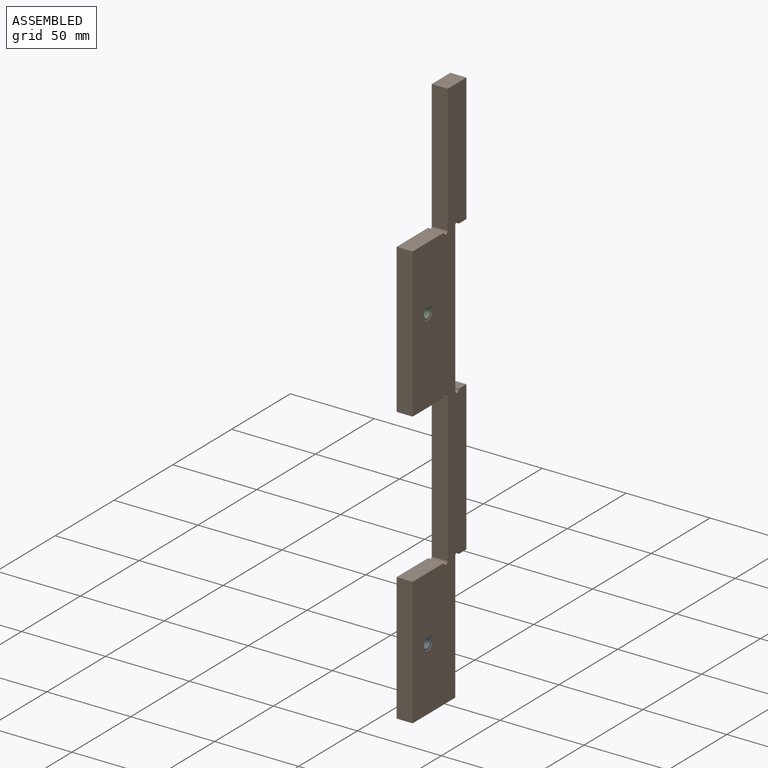
[diagram: assembled view]
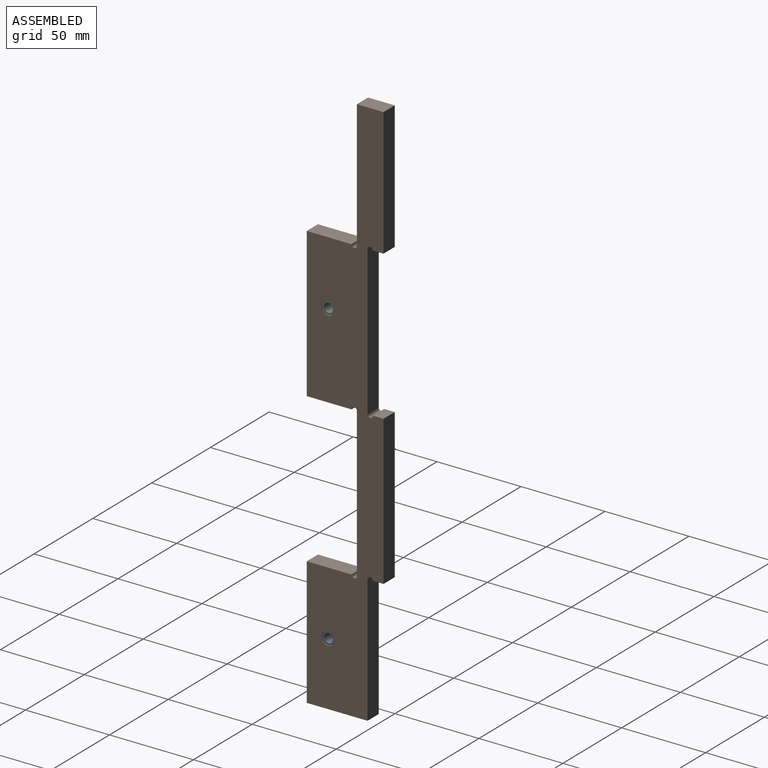
[diagram: assembled view, second angle]
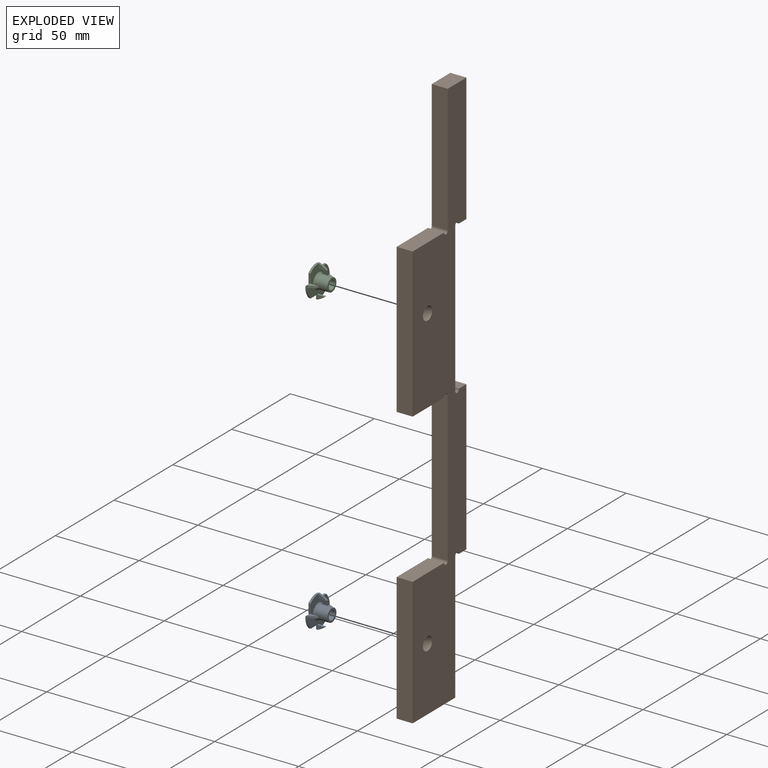
[diagram: exploded view]
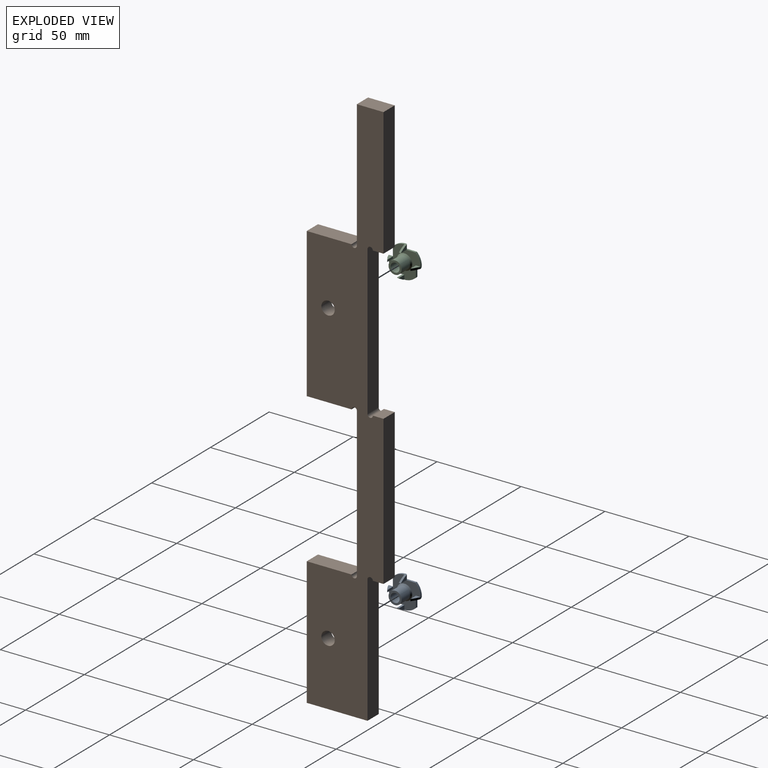
[diagram: exploded view, second angle]
ASSEMBLY  parts=3 mates=2
PART A: 39 faces, bbox 19.1x19.1x9.1 mm
  f0: cylinder r=9.53mm len=6.86mm, axis (0,0,-1), area 9.1mm2, adj f7,f10,f26,f28
  f1: cylinder r=16.73mm len=4.76mm, axis (0,-1,0), area 6.5mm2, adj f2,f3,f5,f6
  f2: plane 1.19x1.19mm, normal (1,0,0), area 1.1mm2, adj f1,f4,f27
  f3: plane 4.76x2.67mm, normal (0,-1,0), area 7.2mm2, adj f1,f4,f6
  f4: cylinder r=1.19mm len=2.67mm, axis (-1,0,0), area 5mm2, adj f2,f3,f7,f26
  f5: plane 4.76x2.67mm, normal (0,1,0), area 7.2mm2, adj f1,f6,f28
  f6: plane 4.76x1.19mm, normal (-1,0,0), area 5.7mm2, adj f1,f3,f5,f28
  f7: plane 6.61x1.19mm, normal (1,0,0), area 6.8mm2, adj f0,f4,f26,f28
  f8: cylinder r=9.53mm len=6.86mm, axis (0,0,-1), area 9.1mm2, adj f15,f18,f26,f28
  f9: cylinder r=16.73mm len=4.76mm, axis (-1,0,0), area 6.5mm2, adj f10,f11,f13,f14
  f10: plane 1.19x1.19mm, normal (0,-1,0), area 1.1mm2, adj f0,f9,f12
  f11: plane 4.76x2.67mm, normal (-1,0,0), area 7.2mm2, adj f9,f12,f14
  f12: cylinder r=1.19mm len=2.67mm, axis (0,1,0), area 5mm2, adj f10,f11,f15,f26
  f13: plane 4.76x2.67mm, normal (1,0,0), area 7.2mm2, adj f9,f14,f28
  f14: plane 4.76x1.19mm, normal (0,1,0), area 5.7mm2, adj f9,f11,f13,f28
  f15: plane 6.61x1.19mm, normal (0,-1,0), area 6.8mm2, adj f8,f12,f26,f28
  f16: cylinder r=9.53mm len=6.86mm, axis (0,0,-1), area 9.1mm2, adj f23,f26,f28,f34
  f17: cylinder r=16.73mm len=4.76mm, axis (0,1,0), area 6.5mm2, adj f18,f19,f21,f22
  f18: plane 1.19x1.19mm, normal (-1,0,0), area 1.1mm2, adj f8,f17,f20
  f19: plane 4.76x2.67mm, normal (0,1,0), area 7.2mm2, adj f17,f20,f22
  f20: cylinder r=1.19mm len=2.67mm, axis (1,0,0), area 5mm2, adj f18,f19,f23,f26
  f21: plane 4.76x2.67mm, normal (0,-1,0), area 7.2mm2, adj f17,f22,f28
  f22: plane 4.76x1.19mm, normal (1,0,0), area 5.7mm2, adj f17,f19,f21,f28
  f23: plane 6.61x1.19mm, normal (-1,0,0), area 6.8mm2, adj f16,f20,f26,f28
  f24: plane 4.76x2.67mm, normal (-1,0,0), area 7.2mm2, adj f28,f37,f38
  f25: cone r=2.68mm half-angle=45deg, axis (0,0,-1), area 44.3mm2, adj f26,f32
  f26: plane 19.05x19.05mm, normal (0,0,-1), area 182.6mm2, adj f0,f4,f7,f8,f12,f15,f16,f20
  f27: cylinder r=9.53mm len=6.86mm, axis (0,0,-1), area 9.1mm2, adj f2,f26,f28,f33
  f28: plane 19.05x19.05mm, normal (0,0,1), area 169mm2, adj f0,f5,f6,f7,f8,f13,f14,f15
  f29: cone r=4.64mm half-angle=45deg, axis (0,0,-1), area 28.8mm2, adj f28,f30
  f30: cylinder r=3.87mm len=7.75mm, axis (0,0,-1), area 174.9mm2, adj f29,f31
  f31: plane 7.75x7.75mm, normal (0,0,1), area 24.6mm2, adj f30,f32
  f32: cylinder r=2.68mm len=7.68mm, axis (0,0,-1), area 129.4mm2, adj f25,f31
  f33: plane 6.61x1.19mm, normal (0,1,0), area 6.8mm2, adj f26,f27,f28,f36
  f34: plane 1.19x1.19mm, normal (0,1,0), area 1.1mm2, adj f16,f36,f38
  f35: plane 4.76x2.67mm, normal (1,0,0), area 7.2mm2, adj f36,f37,f38
  f36: cylinder r=1.19mm len=2.67mm, axis (0,-1,0), area 5mm2, adj f26,f33,f34,f35
  f37: plane 4.76x1.19mm, normal (0,-1,0), area 5.7mm2, adj f24,f28,f35,f38
  f38: cylinder r=16.73mm len=4.76mm, axis (1,0,0), area 6.5mm2, adj f24,f34,f35,f37
PART B: 30 faces, bbox 9.5x45.7x330.2 mm
  f0: plane 9.53x6.35mm, normal (0,0,-1), area 60.5mm2, adj f4,f8,f17,f29
  f1: plane 9.53x6.35mm, normal (0,0,-1), area 60.5mm2, adj f4,f11,f17,f24
  f2: plane 26.67x9.53mm, normal (0,0,1), area 254mm2, adj f4,f14,f17,f26
  f3: plane 26.67x9.53mm, normal (0,0,1), area 254mm2, adj f4,f5,f17,f25
  f4: plane 330.2x45.72mm, normal (-1,0,0), area 7924.4mm2, adj f0,f1,f2,f3,f5,f6,f7,f8
  f5: plane 76.2x9.53mm, normal (0,-1,0), area 725.8mm2, adj f3,f4,f6,f17
  f6: plane 36.2x9.53mm, normal (0,0,-1), area 344.8mm2, adj f4,f5,f7,f17
  f7: plane 76.2x9.53mm, normal (0,1,0), area 725.8mm2, adj f4,f6,f17,f29
  f8: plane 88.9x9.53mm, normal (0,1,0), area 846.8mm2, adj f0,f4,f9,f17
  f9: plane 9.53x6.35mm, normal (0,0,1), area 60.5mm2, adj f4,f8,f17,f27
  f10: plane 88.9x9.53mm, normal (0,1,0), area 846.8mm2, adj f4,f17,f24,f27
  f11: plane 76.2x9.53mm, normal (0,1,0), area 725.8mm2, adj f1,f4,f12,f17
  f12: plane 15.88x9.53mm, normal (0,0,1), area 151.2mm2, adj f4,f11,f13,f17
  f13: plane 76.2x9.53mm, normal (0,-1,0), area 725.8mm2, adj f4,f12,f17,f26
  f14: plane 88.9x9.53mm, normal (0,-1,0), area 846.8mm2, adj f2,f4,f15,f17
  f15: plane 26.67x9.53mm, normal (0,0,-1), area 254mm2, adj f4,f14,f17,f28
  f16: plane 88.9x9.53mm, normal (0,-1,0), area 846.8mm2, adj f4,f17,f25,f28
  f17: plane 330.2x45.72mm, normal (1,0,0), area 8473.7mm2, adj f0,f1,f2,f3,f5,f6,f7,f8
  f18: cylinder r=3.98mm len=8.26mm, axis (-1,0,0), area 206.2mm2, adj f17,f19
  f19: plane 20.32x20.32mm, normal (-1,0,0), area 274.7mm2, adj f18,f20
  f20: cylinder r=10.16mm len=20.32mm, axis (-1,0,0), area 81.1mm2, adj f4,f19
  f21: cylinder r=3.98mm len=8.26mm, axis (-1,0,0), area 206.2mm2, adj f17,f22
  f22: plane 20.32x20.32mm, normal (-1,0,0), area 274.7mm2, adj f21,f23
  f23: cylinder r=10.16mm len=20.32mm, axis (-1,0,0), area 81.1mm2, adj f4,f22
  f24: cylinder r=1.59mm len=9.53mm, axis (-1,0,0), area 47.5mm2, adj f1,f4,f10,f17
  f25: cylinder r=1.59mm len=9.53mm, axis (-1,0,0), area 47.5mm2, adj f3,f4,f16,f17
  f26: cylinder r=1.59mm len=9.53mm, axis (-1,0,0), area 47.5mm2, adj f2,f4,f13,f17
  f27: cylinder r=1.59mm len=9.53mm, axis (-1,0,0), area 47.5mm2, adj f4,f9,f10,f17
  f28: cylinder r=1.59mm len=9.53mm, axis (-1,0,0), area 47.5mm2, adj f4,f15,f16,f17
  f29: cylinder r=1.59mm len=9.53mm, axis (-1,0,0), area 47.5mm2, adj f0,f4,f7,f17
PART C: same geometry as A
PLACE A rot(axis=(-0.58,0.58,-0.58),120deg) t=(63.84,-123.52,-72.51)mm
PLACE B t=(63.76,-103.2,-120.14)mm
PLACE C rot(axis=(-0.58,0.58,-0.58),120deg) t=(63.84,-123.52,105.29)mm
MATE fastened B.f21 <-> A.f0  axis (-1,0,0) through (65.03,-123.52,-72.51)mm
MATE fastened B.f18 <-> C.f0  axis (-1,0,0) through (65.03,-123.52,105.29)mm
